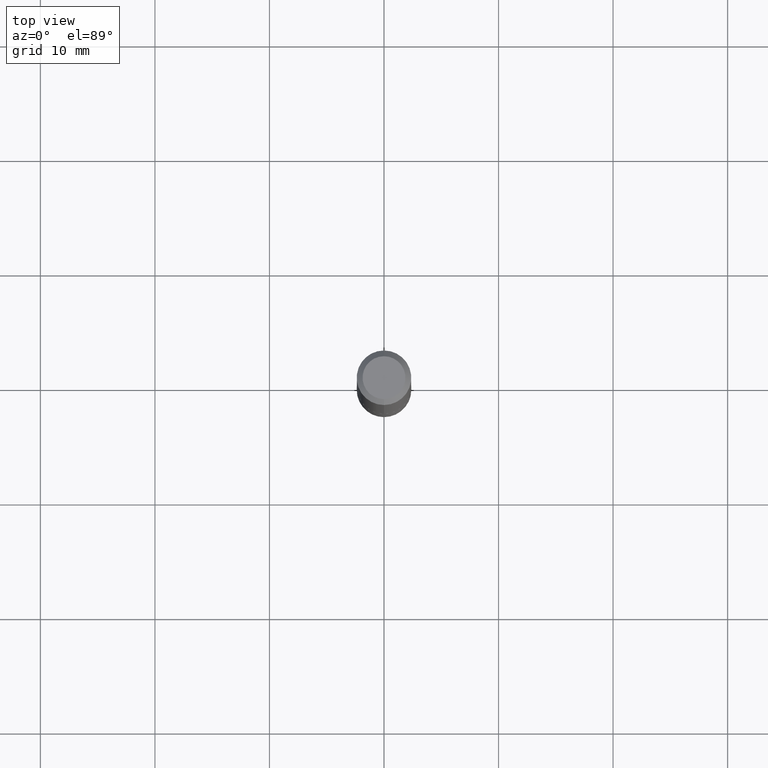
[diagram: clean part render]
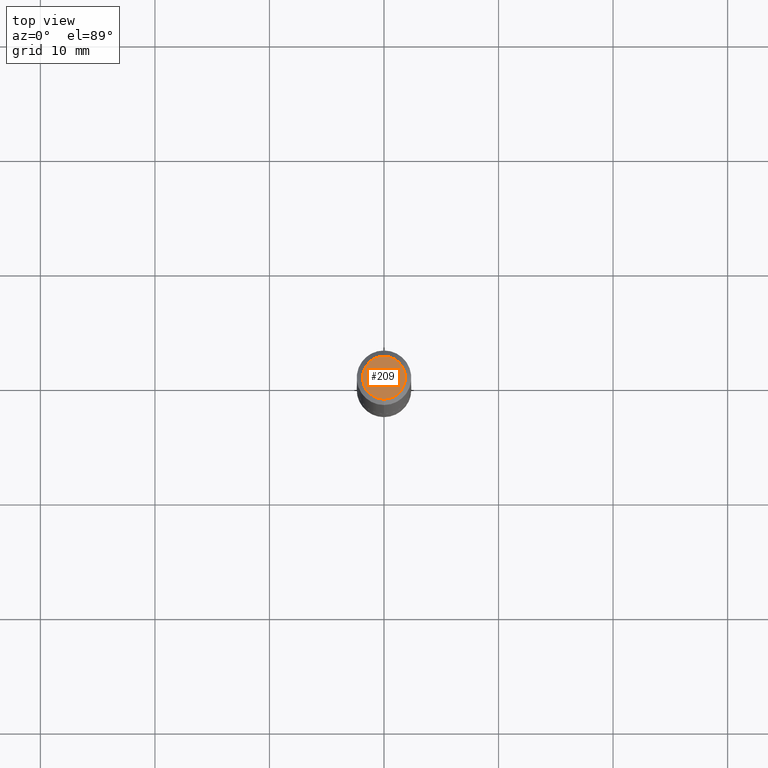
[diagram: same view with one face highlighted and labeled with its STEP entity id]
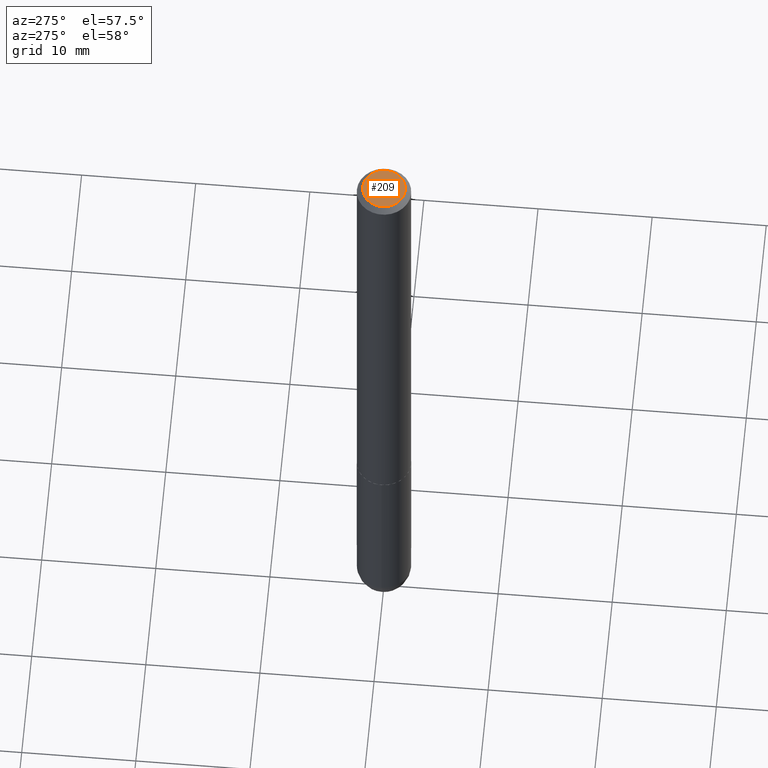
[diagram: same view with one face highlighted and labeled with its STEP entity id]
A machine part, top view. The second image highlights one B-rep face of the part: STEP entity #209.
A second angle (auxiliary view) of the same face is appended — the face is thin or edge-on in the first view.
In plain terms, the highlighted planar face has unit normal (0, -0, -1).
Its self-contained STEP definition (entity closure, byte-faithful):
#8 = ORIENTED_EDGE ( 'NONE', *, *, #166, .T. ) ;
#24 = DIRECTION ( 'NONE',  ( -2.433097056190871662E-29, 3.509198388991212762E-15, 1.000000000000000000 ) ) ;
#31 = FACE_OUTER_BOUND ( 'NONE', #42, .T. ) ;
#34 = DIRECTION ( 'NONE',  ( -2.433097056190871662E-29, 3.509198388991212762E-15, 1.000000000000000000 ) ) ;
#37 = CARTESIAN_POINT ( 'NONE',  ( -5.745667073133644707E-16, -0.07374999999999978795, 3.753598508692322501E-16 ) ) ;
#42 = EDGE_LOOP ( 'NONE', ( #136, #8 ) ) ;
#48 = VERTEX_POINT ( 'NONE', #200 ) ;
#61 = EDGE_CURVE ( 'NONE', #48, #360, #403, .T. ) ;
#129 = CARTESIAN_POINT ( 'NONE',  ( -2.835932032611605891E-45, 4.090197756315282749E-31, 1.165564696811310667E-16 ) ) ;
#136 = ORIENTED_EDGE ( 'NONE', *, *, #61, .T. ) ;
#150 = CARTESIAN_POINT ( 'NONE',  ( -2.835932032611605891E-45, 4.090197756315282749E-31, 1.165564696811310667E-16 ) ) ;
#152 = AXIS2_PLACEMENT_3D ( 'NONE', #129, #34, #184 ) ;
#158 = DIRECTION ( 'NONE',  ( 2.433097056190871382E-29, -3.509198388991212762E-15, -1.000000000000000000 ) ) ;
#166 = EDGE_CURVE ( 'NONE', #360, #48, #220, .T. ) ;
#184 = DIRECTION ( 'NONE',  ( -6.982962677686266711E-15, -1.000000000000000000, 3.509198388991212762E-15 ) ) ;
#200 = CARTESIAN_POINT ( 'NONE',  ( 5.848231242562241073E-16, 0.07374999999999978795, -1.422469115069701659E-16 ) ) ;
#209 = ADVANCED_FACE ( 'NONE', ( #31 ), #280, .F. ) ;
#220 = CIRCLE ( 'NONE', #152, 0.07374999999999978795 ) ;
#255 = AXIS2_PLACEMENT_3D ( 'NONE', #150, #24, #378 ) ;
#280 = PLANE ( 'NONE',  #328 ) ;
#328 = AXIS2_PLACEMENT_3D ( 'NONE', #409, #158, #412 ) ;
#360 = VERTEX_POINT ( 'NONE', #37 ) ;
#378 = DIRECTION ( 'NONE',  ( -6.982962677686266711E-15, -1.000000000000000000, 3.509198388991212762E-15 ) ) ;
#403 = CIRCLE ( 'NONE', #255, 0.07374999999999978795 ) ;
#409 = CARTESIAN_POINT ( 'NONE',  ( 5.149934974793607105E-16, 0.07374999999999978795, -2.005251463475356870E-16 ) ) ;
#412 = DIRECTION ( 'NONE',  ( 6.982962677686265922E-15, 1.000000000000000000, -3.509198388991212762E-15 ) ) ;